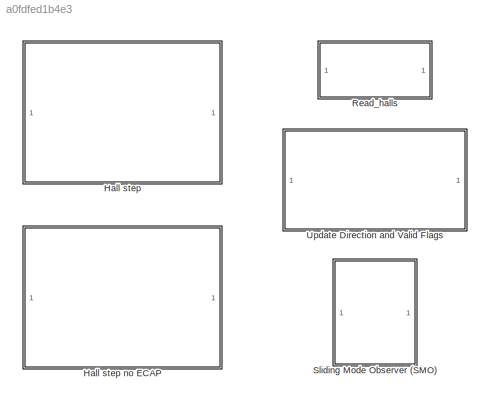
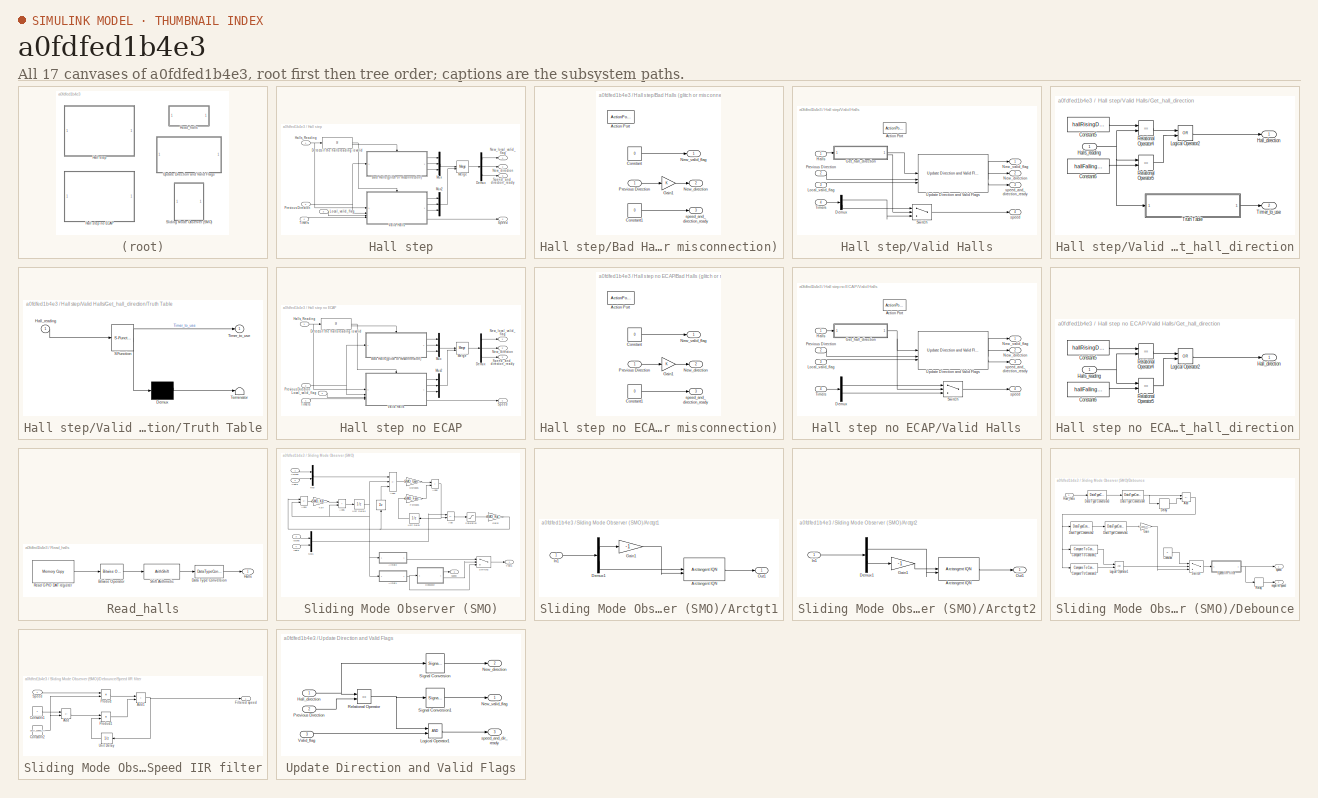
[diagram: thumbnail index - all 17 canvases of the model, root first then tree order]
MODEL slx_a0fdfed1b4e3
KIND library
CONFIG AbsTol = auto
CONFIG EnableMultiTasking = off
CONFIG FixedStep = auto
CONFIG MaxStep = auto
CONFIG MinStep = auto
CONFIG RelTol = 1e-3
CONFIG SampleTimeConstraint = Unconstrained
CONFIG SolverName = ode45
CONFIG StartTime = 0.0
CONFIG StopTime = 10.0
BLOCK [SubSystem] Hall step
  RTWSystemCode = Reusable function
  TreatAsAtomicUnit = on
BLOCK [SubSystem] Hall step no ECAP
  RTWSystemCode = Reusable function
  TreatAsAtomicUnit = on
BLOCK [SubSystem] Hall step no ECAP/Bad Halls (glitch or misconnection)
  TreatAsAtomicUnit = on
BLOCK [ActionPort] Hall step no ECAP/Bad Halls (glitch or misconnection)/Action Port
BLOCK [Constant] Hall step no ECAP/Bad Halls (glitch or misconnection)/Constant
  OutDataTypeStr = uint16
  Value = 0
BLOCK [Constant] Hall step no ECAP/Bad Halls (glitch or misconnection)/Constant1
  OutDataTypeStr = uint16
  Value = 0
BLOCK [Gain] Hall step no ECAP/Bad Halls (glitch or misconnection)/Gain1
  OutDataTypeStr = Inherit: Same as input
  ParamDataTypeStr = Inherit: Same as input
BLOCK [Outport] Hall step no ECAP/Bad Halls (glitch or misconnection)/New_direction
  Port = 2
BLOCK [Outport] Hall step no ECAP/Bad Halls (glitch or misconnection)/New_valid_flag
BLOCK [Inport] Hall step no ECAP/Bad Halls (glitch or misconnection)/Previous Direction
BLOCK [Outport] Hall step no ECAP/Bad Halls (glitch or misconnection)/speed_and_direction_ready
  Port = 3
BLOCK [Demux] Hall step no ECAP/Demux
  Outputs = 3
BLOCK [If] Hall step no ECAP/Detects if the halls reading is valid
  IfExpression = (u1 == hallRisingDir0)|(u1 == hallRisingDir1)|(u1 == hallFallingDir0)|(u1 == hallFallingDir1)
BLOCK [Inport] Hall step no ECAP/Halls_Reading
BLOCK [Inport] Hall step no ECAP/Local_valid_flag
  Port = 3
BLOCK [Merge] Hall step no ECAP/Merge
BLOCK [Mux] Hall step no ECAP/Mux
  DisplayOption = bar
  Inputs = 3
BLOCK [Mux] Hall step no ECAP/Mux2
  DisplayOption = bar
  Inputs = 3
BLOCK [Outport] Hall step no ECAP/New_direction
  Port = 2
BLOCK [Outport] Hall step no ECAP/New_local_valid_flag
BLOCK [Inport] Hall step no ECAP/Previous Direction
  Port = 2
BLOCK [Outport] Hall step no ECAP/Speed
  Port = 4
BLOCK [Outport] Hall step no ECAP/Speed_and_direction_ready
  Port = 3
BLOCK [Inport] Hall step no ECAP/Timers
  Port = 4
BLOCK [SubSystem] Hall step no ECAP/Valid Halls
  TreatAsAtomicUnit = on
BLOCK [ActionPort] Hall step no ECAP/Valid Halls/Action Port
BLOCK [Demux] Hall step no ECAP/Valid Halls/Demux
  Outputs = 2
BLOCK [SubSystem] Hall step no ECAP/Valid Halls/Get_hall_direction
BLOCK [Constant] Hall step no ECAP/Valid Halls/Get_hall_direction/Constant5
  OutDataTypeStr = uint16
  Value = hallRisingDir1
BLOCK [Constant] Hall step no ECAP/Valid Halls/Get_hall_direction/Constant6
  OutDataTypeStr = uint16
  Value = hallFallingDir1
BLOCK [Outport] Hall step no ECAP/Valid Halls/Get_hall_direction/Hall_direction
BLOCK [Inport] Hall step no ECAP/Valid Halls/Get_hall_direction/Halls_reading
BLOCK [Logic] Hall step no ECAP/Valid Halls/Get_hall_direction/Logical Operator2
  AllPortsSameDT = off
  Operator = OR
  OutDataTypeStr = uint(16)
BLOCK [RelationalOperator] Hall step no ECAP/Valid Halls/Get_hall_direction/Relational Operator4
  InputSameDT = off
  Operator = ==
  OutDataTypeStr = uint(16)
BLOCK [RelationalOperator] Hall step no ECAP/Valid Halls/Get_hall_direction/Relational Operator5
  InputSameDT = off
  Operator = ==
  OutDataTypeStr = uint(16)
BLOCK [Inport] Hall step no ECAP/Valid Halls/Halls
BLOCK [Inport] Hall step no ECAP/Valid Halls/Local_valid_flag
  Port = 3
BLOCK [Outport] Hall step no ECAP/Valid Halls/New_direction
  Port = 2
BLOCK [Outport] Hall step no ECAP/Valid Halls/New_valid_flag
BLOCK [Inport] Hall step no ECAP/Valid Halls/Previous Direction
  Port = 2
BLOCK [Switch] Hall step no ECAP/Valid Halls/Switch
  Criteria = u2 ~= 0
  InputSameDT = off
  SaturateOnIntegerOverflow = off
BLOCK [Inport] Hall step no ECAP/Valid Halls/Timers
  Port = 4
BLOCK [Reference] Hall step no ECAP/Valid Halls/Update Direction and Valid Flags  REF=$bdroot/Update Direction and Valid Flags
  SourceBlock = $bdroot/Update Direction and Valid Flags
  SourceType = SubSystem
BLOCK [Outport] Hall step no ECAP/Valid Halls/speed
  Port = 4
BLOCK [Outport] Hall step no ECAP/Valid Halls/speed_and_direction_ready
  Port = 3
BLOCK [SubSystem] Hall step/Bad Halls (glitch or misconnection)
  TreatAsAtomicUnit = on
BLOCK [ActionPort] Hall step/Bad Halls (glitch or misconnection)/Action Port
BLOCK [Constant] Hall step/Bad Halls (glitch or misconnection)/Constant
  OutDataTypeStr = uint16
  Value = 0
BLOCK [Constant] Hall step/Bad Halls (glitch or misconnection)/Constant1
  OutDataTypeStr = uint16
  Value = 0
BLOCK [Gain] Hall step/Bad Halls (glitch or misconnection)/Gain1
  OutDataTypeStr = Inherit: Same as input
  ParamDataTypeStr = Inherit: Same as input
BLOCK [Outport] Hall step/Bad Halls (glitch or misconnection)/New_direction
  Port = 2
BLOCK [Outport] Hall step/Bad Halls (glitch or misconnection)/New_valid_flag
BLOCK [Inport] Hall step/Bad Halls (glitch or misconnection)/Previous Direction
BLOCK [Outport] Hall step/Bad Halls (glitch or misconnection)/speed_and_direction_ready
  Port = 3
BLOCK [Demux] Hall step/Demux
  Outputs = 3
BLOCK [If] Hall step/Detects if the halls reading is valid
  IfExpression = (u1 == hallRisingDir0)|(u1 == hallRisingDir1)|(u1 == hallFallingDir0)|(u1 == hallFallingDir1)
BLOCK [Inport] Hall step/Halls_Reading
BLOCK [Inport] Hall step/Local_valid_flag
  Port = 3
BLOCK [Merge] Hall step/Merge
BLOCK [Mux] Hall step/Mux
  DisplayOption = bar
  Inputs = 3
BLOCK [Mux] Hall step/Mux2
  DisplayOption = bar
  Inputs = 3
BLOCK [Outport] Hall step/New_direction
  Port = 2
BLOCK [Outport] Hall step/New_local_valid_flag
BLOCK [Inport] Hall step/Previous Direction
  Port = 2
BLOCK [Outport] Hall step/Speed
  Port = 4
BLOCK [Outport] Hall step/Speed_and_direction_ready
  Port = 3
BLOCK [Inport] Hall step/Timers
  Port = 4
BLOCK [SubSystem] Hall step/Valid Halls
  TreatAsAtomicUnit = on
BLOCK [ActionPort] Hall step/Valid Halls/Action Port
BLOCK [Demux] Hall step/Valid Halls/Demux
  Outputs = 2
BLOCK [SubSystem] Hall step/Valid Halls/Get_hall_direction
BLOCK [Constant] Hall step/Valid Halls/Get_hall_direction/Constant5
  OutDataTypeStr = uint16
  Value = hallRisingDir1
BLOCK [Constant] Hall step/Valid Halls/Get_hall_direction/Constant6
  OutDataTypeStr = uint16
  Value = hallFallingDir1
BLOCK [Outport] Hall step/Valid Halls/Get_hall_direction/Hall_direction
BLOCK [Inport] Hall step/Valid Halls/Get_hall_direction/Halls_reading
BLOCK [Logic] Hall step/Valid Halls/Get_hall_direction/Logical Operator2
  AllPortsSameDT = off
  Operator = OR
  OutDataTypeStr = uint(16)
BLOCK [RelationalOperator] Hall step/Valid Halls/Get_hall_direction/Relational Operator4
  InputSameDT = off
  Operator = ==
  OutDataTypeStr = uint(16)
BLOCK [RelationalOperator] Hall step/Valid Halls/Get_hall_direction/Relational Operator5
  InputSameDT = off
  Operator = ==
  OutDataTypeStr = uint(16)
BLOCK [Outport] Hall step/Valid Halls/Get_hall_direction/Timer_to_use
  Port = 2
BLOCK [SubSystem] Hall step/Valid Halls/Get_hall_direction/Truth Table
  ErrorFcn = Stateflow.Translate.translate
  PermitHierarchicalResolution = ExplicitOnly
  SFBlockType = Truth Table
  TreatAsAtomicUnit = on
BLOCK [Demux] Hall step/Valid Halls/Get_hall_direction/Truth Table/ Demux 
  Outputs = 1
BLOCK [S-Function] Hall step/Valid Halls/Get_hall_direction/Truth Table/ SFunction 
  EnableBusSupport = off
  FunctionName = sf_sfun
  Parameters = hallFallingDir0,hallFallingDir1,hallRisingDir0,hallRisingDir1
  PortCounts = [1 2]
  SFcnIsStateOwnerBlock = off
  SFunctionDeploymentMode = off
  Tag = Stateflow S-Function 2
BLOCK [Terminator] Hall step/Valid Halls/Get_hall_direction/Truth Table/ Terminator 
BLOCK [Inport] Hall step/Valid Halls/Get_hall_direction/Truth Table/Hall_reading
BLOCK [Outport] Hall step/Valid Halls/Get_hall_direction/Truth Table/Timer_to_use
BLOCK [Inport] Hall step/Valid Halls/Halls
BLOCK [Inport] Hall step/Valid Halls/Local_valid_flag
  Port = 3
BLOCK [Outport] Hall step/Valid Halls/New_direction
  Port = 2
BLOCK [Outport] Hall step/Valid Halls/New_valid_flag
BLOCK [Inport] Hall step/Valid Halls/Previous Direction
  Port = 2
BLOCK [Switch] Hall step/Valid Halls/Switch
  Criteria = u2 ~= 0
  InputSameDT = off
  SaturateOnIntegerOverflow = off
BLOCK [Inport] Hall step/Valid Halls/Timers
  Port = 4
BLOCK [Reference] Hall step/Valid Halls/Update Direction and Valid Flags  REF=$bdroot/Update Direction and Valid Flags
  SourceBlock = $bdroot/Update Direction and Valid Flags
  SourceType = SubSystem
BLOCK [Outport] Hall step/Valid Halls/speed
  Port = 4
BLOCK [Outport] Hall step/Valid Halls/speed_and_direction_ready
  Port = 3
BLOCK [SubSystem] Read_halls
BLOCK [Reference] Read_halls/Bitwise Operator  REF=simulink/Logic and Bit
Operations/Bitwise
Operator
  SourceBlock = simulink/Logic and Bit\nOperations/Bitwise\nOperator
  SourceType = Bitwise Operator
BLOCK [DataTypeConversion] Read_halls/Data Type Conversion
  ConvertRealWorld = Stored Integer (SI)
  OutDataTypeStr = uint16
  RndMeth = Floor
  SaturateOnIntegerOverflow = off
BLOCK [Outport] Read_halls/Halls
BLOCK [Reference] Read_halls/Read GPIO DAT register  REF=idelinklib_common/Memory Copy
  SourceBlock = idelinklib_common/Memory Copy
  SourceType = Memory Copy
BLOCK [ArithShift] Read_halls/Shift Arithmetic
  BitShiftNumber = 24
  InputPortMap = u0
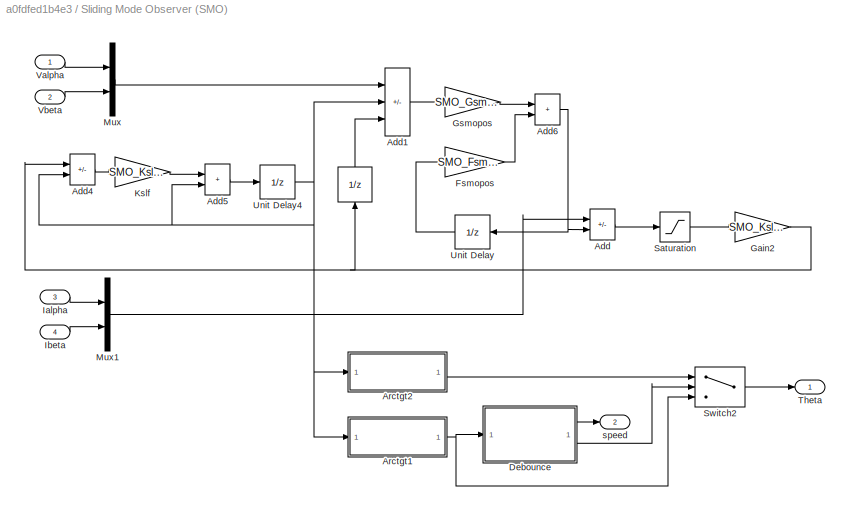
BLOCK [SubSystem] Sliding Mode Observer (SMO)
  MinAlgLoopOccurrences = on
  RTWSystemCode = Reusable function
  TreatAsAtomicUnit = on
BLOCK [UnitDelay] Sliding Mode Observer (SMO)/ 
  HasFrameUpgradeWarning = on
  NameLocation = left
  SampleTime = -1
BLOCK [Sum] Sliding Mode Observer (SMO)/Add
  IconShape = rectangular
  Inputs = -+
  OutDataTypeStr = Inherit: Same as first input
BLOCK [Sum] Sliding Mode Observer (SMO)/Add1
  AccumDataTypeStr = Inherit: Same as first input
  IconShape = rectangular
  Inputs = +--
  OutDataTypeStr = Inherit: Inherit via back propagation
BLOCK [Sum] Sliding Mode Observer (SMO)/Add4
  IconShape = rectangular
  Inputs = +-
  OutDataTypeStr = Inherit: Same as first input
BLOCK [Sum] Sliding Mode Observer (SMO)/Add5
  IconShape = rectangular
  OutDataTypeStr = Inherit: Same as first input
BLOCK [Sum] Sliding Mode Observer (SMO)/Add6
  IconShape = rectangular
  OutDataTypeStr = Inherit: Same as first input
BLOCK [SubSystem] Sliding Mode Observer (SMO)/Arctgt1
BLOCK [Reference] Sliding Mode Observer (SMO)/Arctgt1/Arctangent IQN  REF=tiiqmathlib/Arctangent IQN
  SourceBlock = tiiqmathlib/Arctangent IQN
  SourceType = Arctangent IQN
BLOCK [Demux] Sliding Mode Observer (SMO)/Arctgt1/Demux1
  Outputs = 2
BLOCK [Gain] Sliding Mode Observer (SMO)/Arctgt1/Gain1
  Gain = -1
  OutDataTypeStr = Inherit: Same as input
  ParamDataTypeStr = Inherit: Same as input
BLOCK [Inport] Sliding Mode Observer (SMO)/Arctgt1/In1
BLOCK [Outport] Sliding Mode Observer (SMO)/Arctgt1/Out1
BLOCK [SubSystem] Sliding Mode Observer (SMO)/Arctgt2
BLOCK [Reference] Sliding Mode Observer (SMO)/Arctgt2/Arctangent IQN  REF=tiiqmathlib/Arctangent IQN
  SourceBlock = tiiqmathlib/Arctangent IQN
  SourceType = Arctangent IQN
BLOCK [Demux] Sliding Mode Observer (SMO)/Arctgt2/Demux1
  Outputs = 2
BLOCK [Gain] Sliding Mode Observer (SMO)/Arctgt2/Gain1
  Gain = -1
  OutDataTypeStr = Inherit: Same as input
  ParamDataTypeStr = Inherit: Same as input
BLOCK [Inport] Sliding Mode Observer (SMO)/Arctgt2/In1
BLOCK [Outport] Sliding Mode Observer (SMO)/Arctgt2/Out1
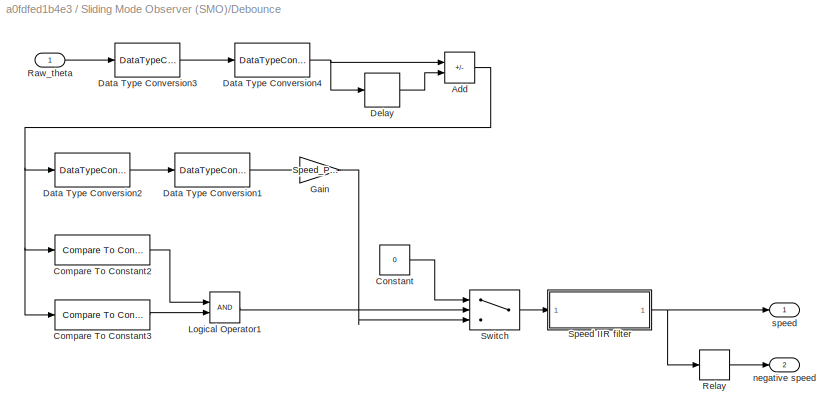
BLOCK [SubSystem] Sliding Mode Observer (SMO)/Debounce
BLOCK [Sum] Sliding Mode Observer (SMO)/Debounce/Add
  IconShape = rectangular
  Inputs = +-
  OutDataTypeStr = uint16
BLOCK [Reference] Sliding Mode Observer (SMO)/Debounce/Compare To Constant2  REF=simulink/Logic and Bit
Operations/Compare
To Constant
  SourceBlock = simulink/Logic and Bit\nOperations/Compare\nTo Constant
  SourceType = Compare To Constant
BLOCK [Reference] Sliding Mode Observer (SMO)/Debounce/Compare To Constant3  REF=simulink/Logic and Bit
Operations/Compare
To Constant
  SourceBlock = simulink/Logic and Bit\nOperations/Compare\nTo Constant
  SourceType = Compare To Constant
BLOCK [Constant] Sliding Mode Observer (SMO)/Debounce/Constant
  OutDataTypeStr = fixdt(1,32,17)
  Value = 0
BLOCK [DataTypeConversion] Sliding Mode Observer (SMO)/Debounce/Data Type Conversion1
  ConvertRealWorld = Stored Integer (SI)
  OutDataTypeStr = fixdt(1,32,15)
  RndMeth = Floor
  SaturateOnIntegerOverflow = off
BLOCK [DataTypeConversion] Sliding Mode Observer (SMO)/Debounce/Data Type Conversion2
  ConvertRealWorld = Stored Integer (SI)
  OutDataTypeStr = int16
  RndMeth = Floor
  SaturateOnIntegerOverflow = off
BLOCK [DataTypeConversion] Sliding Mode Observer (SMO)/Debounce/Data Type Conversion3
  OutDataTypeStr = fixdt(1,32,16)
  RndMeth = Floor
  SaturateOnIntegerOverflow = off
BLOCK [DataTypeConversion] Sliding Mode Observer (SMO)/Debounce/Data Type Conversion4
  ConvertRealWorld = Stored Integer (SI)
  OutDataTypeStr = uint16
  RndMeth = Floor
  SaturateOnIntegerOverflow = off
BLOCK [Delay] Sliding Mode Observer (SMO)/Debounce/Delay
  DelayLength = SMO_speed_loop_delay
  InputPortMap = u0
BLOCK [Gain] Sliding Mode Observer (SMO)/Debounce/Gain
  Gain = Speed_PU_scaler
  OutDataTypeStr = fixdt(1,32,17)
  ParamDataTypeStr = fixdt(1,32,17)
BLOCK [Logic] Sliding Mode Observer (SMO)/Debounce/Logical Operator1
  AllPortsSameDT = off
  OutDataTypeStr = boolean
BLOCK [Inport] Sliding Mode Observer (SMO)/Debounce/Raw_theta
BLOCK [Relay] Sliding Mode Observer (SMO)/Debounce/Relay
  OffOutputValue = 1
  OffSwitchValue = -0.05
  OnOutputValue = 0
  OnSwitchValue = 0.05
BLOCK [SubSystem] Sliding Mode Observer (SMO)/Debounce/Speed IIR filter
BLOCK [Sum] Sliding Mode Observer (SMO)/Debounce/Speed IIR filter/Add
  IconShape = rectangular
  Inputs = +-
BLOCK [Sum] Sliding Mode Observer (SMO)/Debounce/Speed IIR filter/Add1
  IconShape = rectangular
BLOCK [Constant] Sliding Mode Observer (SMO)/Debounce/Speed IIR filter/Constant1
  OutDataTypeStr = fixdt(1,32,17)
BLOCK [Constant] Sliding Mode Observer (SMO)/Debounce/Speed IIR filter/Constant2
  OutDataTypeStr = fixdt(1,32,17)
  Value = SMO_speed_IIR_gain
BLOCK [Outport] Sliding Mode Observer (SMO)/Debounce/Speed IIR filter/Filtered speed
BLOCK [Product] Sliding Mode Observer (SMO)/Debounce/Speed IIR filter/Product
  OutDataTypeStr = Inherit: Same as first input
BLOCK [Product] Sliding Mode Observer (SMO)/Debounce/Speed IIR filter/Product1
  OutDataTypeStr = Inherit: Same as first input
BLOCK [Inport] Sliding Mode Observer (SMO)/Debounce/Speed IIR filter/Speed
BLOCK [UnitDelay] Sliding Mode Observer (SMO)/Debounce/Speed IIR filter/Unit Delay
  HasFrameUpgradeWarning = on
  SampleTime = -1
BLOCK [Switch] Sliding Mode Observer (SMO)/Debounce/Switch
  Criteria = u2 ~= 0
  InputSameDT = off
  SaturateOnIntegerOverflow = off
BLOCK [Outport] Sliding Mode Observer (SMO)/Debounce/negative speed
  Port = 2
BLOCK [Outport] Sliding Mode Observer (SMO)/Debounce/speed
BLOCK [Gain] Sliding Mode Observer (SMO)/Fsmopos
  Gain = SMO_Fsmopos_gain
  OutDataTypeStr = Inherit: Same as input
  ParamDataTypeStr = Inherit: Same as input
BLOCK [Gain] Sliding Mode Observer (SMO)/Gain2
  Gain = SMO_Kslide_gain*2
  OutDataTypeStr = Inherit: Same as input
  ParamDataTypeStr = Inherit: Same as input
BLOCK [Gain] Sliding Mode Observer (SMO)/Gsmopos
  Gain = SMO_Gsmopos_gain
  OutDataTypeStr = Inherit: Same as input
  ParamDataTypeStr = Inherit: Same as input
BLOCK [Inport] Sliding Mode Observer (SMO)/Ialpha
  Port = 3
BLOCK [Inport] Sliding Mode Observer (SMO)/Ibeta
  Port = 4
BLOCK [Gain] Sliding Mode Observer (SMO)/Kslf
  Gain = SMO_Kslf_gain
  OutDataTypeStr = Inherit: Same as input
  ParamDataTypeStr = Inherit: Same as input
BLOCK [Mux] Sliding Mode Observer (SMO)/Mux
  DisplayOption = bar
  Inputs = 2
BLOCK [Mux] Sliding Mode Observer (SMO)/Mux1
  DisplayOption = bar
  Inputs = 2
BLOCK [Saturate] Sliding Mode Observer (SMO)/Saturation
  LowerLimit = -SMO_E0
  UpperLimit = SMO_E0
BLOCK [Switch] Sliding Mode Observer (SMO)/Switch2
  Criteria = u2 ~= 0
  InputSameDT = off
  SaturateOnIntegerOverflow = off
BLOCK [Outport] Sliding Mode Observer (SMO)/Theta
BLOCK [UnitDelay] Sliding Mode Observer (SMO)/Unit Delay
  HasFrameUpgradeWarning = on
  SampleTime = -1
BLOCK [UnitDelay] Sliding Mode Observer (SMO)/Unit Delay4
  HasFrameUpgradeWarning = on
  SampleTime = -1
BLOCK [Inport] Sliding Mode Observer (SMO)/Valpha
BLOCK [Inport] Sliding Mode Observer (SMO)/Vbeta
  Port = 2
BLOCK [Outport] Sliding Mode Observer (SMO)/speed
  Port = 2
BLOCK [SubSystem] Update Direction and Valid Flags
BLOCK [Inport] Update Direction and Valid Flags/Hall_direction
BLOCK [Logic] Update Direction and Valid Flags/Logical Operator1
  AllPortsSameDT = off
  OutDataTypeStr = uint(16)
BLOCK [Outport] Update Direction and Valid Flags/New_direction
  Port = 2
BLOCK [Outport] Update Direction and Valid Flags/New_valid_flag
BLOCK [Inport] Update Direction and Valid Flags/Previous Direction
  Port = 2
BLOCK [RelationalOperator] Update Direction and Valid Flags/Relational Operator
  InputSameDT = off
  Operator = ==
  OutDataTypeStr = uint(16)
BLOCK [SignalConversion] Update Direction and Valid Flags/Signal Conversion
  OverrideOpt = on
BLOCK [SignalConversion] Update Direction and Valid Flags/Signal Conversion1
  OverrideOpt = on
BLOCK [Inport] Update Direction and Valid Flags/Valid_flag
  Port = 3
BLOCK [Outport] Update Direction and Valid Flags/speed_and_dir_ready
  Port = 3
LINE Hall step no ECAP/Bad Halls (glitch or misconnection)/Constant1:1 -> Hall step no ECAP/Bad Halls (glitch or misconnection)/speed_and_direction_ready:1
LINE Hall step no ECAP/Bad Halls (glitch or misconnection)/Constant:1 -> Hall step no ECAP/Bad Halls (glitch or misconnection)/New_valid_flag:1
LINE Hall step no ECAP/Bad Halls (glitch or misconnection)/Gain1:1 -> Hall step no ECAP/Bad Halls (glitch or misconnection)/New_direction:1
LINE Hall step no ECAP/Bad Halls (glitch or misconnection)/Previous Direction:1 -> Hall step no ECAP/Bad Halls (glitch or misconnection)/Gain1:1
LINE Hall step no ECAP/Bad Halls (glitch or misconnection):1 -> Hall step no ECAP/Mux:1
LINE Hall step no ECAP/Bad Halls (glitch or misconnection):2 -> Hall step no ECAP/Mux:2
LINE Hall step no ECAP/Bad Halls (glitch or misconnection):3 -> Hall step no ECAP/Mux:3
LINE Hall step no ECAP/Demux:1 -> Hall step no ECAP/New_local_valid_flag:1
LINE Hall step no ECAP/Demux:2 -> Hall step no ECAP/New_direction:1
LINE Hall step no ECAP/Demux:3 -> Hall step no ECAP/Speed_and_direction_ready:1
LINE Hall step no ECAP/Detects if the halls reading is valid:1 -> Hall step no ECAP/Valid Halls:ifaction
LINE Hall step no ECAP/Detects if the halls reading is valid:2 -> Hall step no ECAP/Bad Halls (glitch or misconnection):ifaction
NET Hall step no ECAP/Halls_Reading:1 -> Hall step no ECAP/Detects if the halls reading is valid:1, Hall step no ECAP/Valid Halls:1
LINE Hall step no ECAP/Local_valid_flag:1 -> Hall step no ECAP/Valid Halls:3
LINE Hall step no ECAP/Merge:1 -> Hall step no ECAP/Demux:1
LINE Hall step no ECAP/Mux2:1 -> Hall step no ECAP/Merge:2
LINE Hall step no ECAP/Mux:1 -> Hall step no ECAP/Merge:1
NET Hall step no ECAP/Previous Direction:1 -> Hall step no ECAP/Bad Halls (glitch or misconnection):1, Hall step no ECAP/Valid Halls:2
LINE Hall step no ECAP/Timers:1 -> Hall step no ECAP/Valid Halls:4
LINE Hall step no ECAP/Valid Halls/Demux:1 -> Hall step no ECAP/Valid Halls/Switch:1
LINE Hall step no ECAP/Valid Halls/Demux:2 -> Hall step no ECAP/Valid Halls/Switch:3
LINE Hall step no ECAP/Valid Halls/Get_hall_direction/Constant5:1 -> Hall step no ECAP/Valid Halls/Get_hall_direction/Relational Operator4:1
LINE Hall step no ECAP/Valid Halls/Get_hall_direction/Constant6:1 -> Hall step no ECAP/Valid Halls/Get_hall_direction/Relational Operator5:2
NET Hall step no ECAP/Valid Halls/Get_hall_direction/Halls_reading:1 -> Hall step no ECAP/Valid Halls/Get_hall_direction/Relational Operator4:2, Hall step no ECAP/Valid Halls/Get_hall_direction/Relational Operator5:1
LINE Hall step no ECAP/Valid Halls/Get_hall_direction/Logical Operator2:1 -> Hall step no ECAP/Valid Halls/Get_hall_direction/Hall_direction:1
LINE Hall step no ECAP/Valid Halls/Get_hall_direction/Relational Operator4:1 -> Hall step no ECAP/Valid Halls/Get_hall_direction/Logical Operator2:1
LINE Hall step no ECAP/Valid Halls/Get_hall_direction/Relational Operator5:1 -> Hall step no ECAP/Valid Halls/Get_hall_direction/Logical Operator2:2
NET Hall step no ECAP/Valid Halls/Get_hall_direction:1 -> Hall step no ECAP/Valid Halls/Switch:2, Hall step no ECAP/Valid Halls/Update Direction and Valid Flags:1
LINE Hall step no ECAP/Valid Halls/Halls:1 -> Hall step no ECAP/Valid Halls/Get_hall_direction:1
LINE Hall step no ECAP/Valid Halls/Local_valid_flag:1 -> Hall step no ECAP/Valid Halls/Update Direction and Valid Flags:3
LINE Hall step no ECAP/Valid Halls/Previous Direction:1 -> Hall step no ECAP/Valid Halls/Update Direction and Valid Flags:2
LINE Hall step no ECAP/Valid Halls/Switch:1 -> Hall step no ECAP/Valid Halls/speed:1
LINE Hall step no ECAP/Valid Halls/Timers:1 -> Hall step no ECAP/Valid Halls/Demux:1
LINE Hall step no ECAP/Valid Halls/Update Direction and Valid Flags:1 -> Hall step no ECAP/Valid Halls/New_valid_flag:1
LINE Hall step no ECAP/Valid Halls/Update Direction and Valid Flags:2 -> Hall step no ECAP/Valid Halls/New_direction:1
LINE Hall step no ECAP/Valid Halls/Update Direction and Valid Flags:3 -> Hall step no ECAP/Valid Halls/speed_and_direction_ready:1
LINE Hall step no ECAP/Valid Halls:1 -> Hall step no ECAP/Mux2:1
LINE Hall step no ECAP/Valid Halls:2 -> Hall step no ECAP/Mux2:2
LINE Hall step no ECAP/Valid Halls:3 -> Hall step no ECAP/Mux2:3
LINE Hall step no ECAP/Valid Halls:4 -> Hall step no ECAP/Speed:1
LINE Hall step/Bad Halls (glitch or misconnection)/Constant1:1 -> Hall step/Bad Halls (glitch or misconnection)/speed_and_direction_ready:1
LINE Hall step/Bad Halls (glitch or misconnection)/Constant:1 -> Hall step/Bad Halls (glitch or misconnection)/New_valid_flag:1
LINE Hall step/Bad Halls (glitch or misconnection)/Gain1:1 -> Hall step/Bad Halls (glitch or misconnection)/New_direction:1
LINE Hall step/Bad Halls (glitch or misconnection)/Previous Direction:1 -> Hall step/Bad Halls (glitch or misconnection)/Gain1:1
LINE Hall step/Bad Halls (glitch or misconnection):1 -> Hall step/Mux:1
LINE Hall step/Bad Halls (glitch or misconnection):2 -> Hall step/Mux:2
LINE Hall step/Bad Halls (glitch or misconnection):3 -> Hall step/Mux:3
LINE Hall step/Demux:1 -> Hall step/New_local_valid_flag:1
LINE Hall step/Demux:2 -> Hall step/New_direction:1
LINE Hall step/Demux:3 -> Hall step/Speed_and_direction_ready:1
LINE Hall step/Detects if the halls reading is valid:1 -> Hall step/Valid Halls:ifaction
LINE Hall step/Detects if the halls reading is valid:2 -> Hall step/Bad Halls (glitch or misconnection):ifaction
NET Hall step/Halls_Reading:1 -> Hall step/Detects if the halls reading is valid:1, Hall step/Valid Halls:1
LINE Hall step/Local_valid_flag:1 -> Hall step/Valid Halls:3
LINE Hall step/Merge:1 -> Hall step/Demux:1
LINE Hall step/Mux2:1 -> Hall step/Merge:2
LINE Hall step/Mux:1 -> Hall step/Merge:1
NET Hall step/Previous Direction:1 -> Hall step/Bad Halls (glitch or misconnection):1, Hall step/Valid Halls:2
LINE Hall step/Timers:1 -> Hall step/Valid Halls:4
LINE Hall step/Valid Halls/Demux:1 -> Hall step/Valid Halls/Switch:3
LINE Hall step/Valid Halls/Demux:2 -> Hall step/Valid Halls/Switch:1
LINE Hall step/Valid Halls/Get_hall_direction/Constant5:1 -> Hall step/Valid Halls/Get_hall_direction/Relational Operator4:1
LINE Hall step/Valid Halls/Get_hall_direction/Constant6:1 -> Hall step/Valid Halls/Get_hall_direction/Relational Operator5:2
NET Hall step/Valid Halls/Get_hall_direction/Halls_reading:1 -> Hall step/Valid Halls/Get_hall_direction/Relational Operator4:2, Hall step/Valid Halls/Get_hall_direction/Relational Operator5:1, Hall step/Valid Halls/Get_hall_direction/Truth Table:1
LINE Hall step/Valid Halls/Get_hall_direction/Logical Operator2:1 -> Hall step/Valid Halls/Get_hall_direction/Hall_direction:1
LINE Hall step/Valid Halls/Get_hall_direction/Relational Operator4:1 -> Hall step/Valid Halls/Get_hall_direction/Logical Operator2:1
LINE Hall step/Valid Halls/Get_hall_direction/Relational Operator5:1 -> Hall step/Valid Halls/Get_hall_direction/Logical Operator2:2
LINE Hall step/Valid Halls/Get_hall_direction/Truth Table:1 -> Hall step/Valid Halls/Get_hall_direction/Timer_to_use:1
LINE Hall step/Valid Halls/Get_hall_direction:1 -> Hall step/Valid Halls/Update Direction and Valid Flags:1
LINE Hall step/Valid Halls/Get_hall_direction:2 -> Hall step/Valid Halls/Switch:2
LINE Hall step/Valid Halls/Halls:1 -> Hall step/Valid Halls/Get_hall_direction:1
LINE Hall step/Valid Halls/Local_valid_flag:1 -> Hall step/Valid Halls/Update Direction and Valid Flags:3
LINE Hall step/Valid Halls/Previous Direction:1 -> Hall step/Valid Halls/Update Direction and Valid Flags:2
LINE Hall step/Valid Halls/Switch:1 -> Hall step/Valid Halls/speed:1
LINE Hall step/Valid Halls/Timers:1 -> Hall step/Valid Halls/Demux:1
LINE Hall step/Valid Halls/Update Direction and Valid Flags:1 -> Hall step/Valid Halls/New_valid_flag:1
LINE Hall step/Valid Halls/Update Direction and Valid Flags:2 -> Hall step/Valid Halls/New_direction:1
LINE Hall step/Valid Halls/Update Direction and Valid Flags:3 -> Hall step/Valid Halls/speed_and_direction_ready:1
LINE Hall step/Valid Halls:1 -> Hall step/Mux2:1
LINE Hall step/Valid Halls:2 -> Hall step/Mux2:2
LINE Hall step/Valid Halls:3 -> Hall step/Mux2:3
LINE Hall step/Valid Halls:4 -> Hall step/Speed:1
LINE Read_halls/Bitwise Operator:1 -> Read_halls/Shift Arithmetic:1
LINE Read_halls/Data Type Conversion:1 -> Read_halls/Halls:1
LINE Read_halls/Read GPIO DAT register:1 -> Read_halls/Bitwise Operator:1
LINE Read_halls/Shift Arithmetic:1 -> Read_halls/Data Type Conversion:1
LINE Sliding Mode Observer (SMO)/ :1 -> Sliding Mode Observer (SMO)/Add1:3
LINE Sliding Mode Observer (SMO)/Add1:1 -> Sliding Mode Observer (SMO)/Gsmopos:1
LINE Sliding Mode Observer (SMO)/Add4:1 -> Sliding Mode Observer (SMO)/Kslf:1
LINE Sliding Mode Observer (SMO)/Add5:1 -> Sliding Mode Observer (SMO)/Unit Delay4:1
NET Sliding Mode Observer (SMO)/Add6:1 -> Sliding Mode Observer (SMO)/Add:2, Sliding Mode Observer (SMO)/Unit Delay:1
LINE Sliding Mode Observer (SMO)/Add:1 -> Sliding Mode Observer (SMO)/Saturation:1
LINE Sliding Mode Observer (SMO)/Arctgt1/Arctangent IQN:1 -> Sliding Mode Observer (SMO)/Arctgt1/Out1:1
LINE Sliding Mode Observer (SMO)/Arctgt1/Demux1:1 -> Sliding Mode Observer (SMO)/Arctgt1/Gain1:1
LINE Sliding Mode Observer (SMO)/Arctgt1/Demux1:2 -> Sliding Mode Observer (SMO)/Arctgt1/Arctangent IQN:1
LINE Sliding Mode Observer (SMO)/Arctgt1/Gain1:1 -> Sliding Mode Observer (SMO)/Arctgt1/Arctangent IQN:2
LINE Sliding Mode Observer (SMO)/Arctgt1/In1:1 -> Sliding Mode Observer (SMO)/Arctgt1/Demux1:1
NET Sliding Mode Observer (SMO)/Arctgt1:1 -> Sliding Mode Observer (SMO)/Debounce:1, Sliding Mode Observer (SMO)/Switch2:3
LINE Sliding Mode Observer (SMO)/Arctgt2/Arctangent IQN:1 -> Sliding Mode Observer (SMO)/Arctgt2/Out1:1
LINE Sliding Mode Observer (SMO)/Arctgt2/Demux1:1 -> Sliding Mode Observer (SMO)/Arctgt2/Arctangent IQN:2
LINE Sliding Mode Observer (SMO)/Arctgt2/Demux1:2 -> Sliding Mode Observer (SMO)/Arctgt2/Gain1:1
LINE Sliding Mode Observer (SMO)/Arctgt2/Gain1:1 -> Sliding Mode Observer (SMO)/Arctgt2/Arctangent IQN:1
LINE Sliding Mode Observer (SMO)/Arctgt2/In1:1 -> Sliding Mode Observer (SMO)/Arctgt2/Demux1:1
LINE Sliding Mode Observer (SMO)/Arctgt2:1 -> Sliding Mode Observer (SMO)/Switch2:1
NET Sliding Mode Observer (SMO)/Debounce/Add:1 -> Sliding Mode Observer (SMO)/Debounce/Compare To Constant2:1, Sliding Mode Observer (SMO)/Debounce/Compare To Constant3:1, Sliding Mode Observer (SMO)/Debounce/Data Type Conversion2:1
LINE Sliding Mode Observer (SMO)/Debounce/Compare To Constant2:1 -> Sliding Mode Observer (SMO)/Debounce/Logical Operator1:1
LINE Sliding Mode Observer (SMO)/Debounce/Compare To Constant3:1 -> Sliding Mode Observer (SMO)/Debounce/Logical Operator1:2
LINE Sliding Mode Observer (SMO)/Debounce/Constant:1 -> Sliding Mode Observer (SMO)/Debounce/Switch:1
LINE Sliding Mode Observer (SMO)/Debounce/Data Type Conversion1:1 -> Sliding Mode Observer (SMO)/Debounce/Gain:1
LINE Sliding Mode Observer (SMO)/Debounce/Data Type Conversion2:1 -> Sliding Mode Observer (SMO)/Debounce/Data Type Conversion1:1
LINE Sliding Mode Observer (SMO)/Debounce/Data Type Conversion3:1 -> Sliding Mode Observer (SMO)/Debounce/Data Type Conversion4:1
NET Sliding Mode Observer (SMO)/Debounce/Data Type Conversion4:1 -> Sliding Mode Observer (SMO)/Debounce/Add:1, Sliding Mode Observer (SMO)/Debounce/Delay:1
LINE Sliding Mode Observer (SMO)/Debounce/Delay:1 -> Sliding Mode Observer (SMO)/Debounce/Add:2
LINE Sliding Mode Observer (SMO)/Debounce/Gain:1 -> Sliding Mode Observer (SMO)/Debounce/Switch:3
LINE Sliding Mode Observer (SMO)/Debounce/Logical Operator1:1 -> Sliding Mode Observer (SMO)/Debounce/Switch:2
LINE Sliding Mode Observer (SMO)/Debounce/Raw_theta:1 -> Sliding Mode Observer (SMO)/Debounce/Data Type Conversion3:1
LINE Sliding Mode Observer (SMO)/Debounce/Relay:1 -> Sliding Mode Observer (SMO)/Debounce/negative speed:1
NET Sliding Mode Observer (SMO)/Debounce/Speed IIR filter/Add1:1 -> Sliding Mode Observer (SMO)/Debounce/Speed IIR filter/Filtered speed:1, Sliding Mode Observer (SMO)/Debounce/Speed IIR filter/Unit Delay:1
LINE Sliding Mode Observer (SMO)/Debounce/Speed IIR filter/Add:1 -> Sliding Mode Observer (SMO)/Debounce/Speed IIR filter/Product1:1
LINE Sliding Mode Observer (SMO)/Debounce/Speed IIR filter/Constant1:1 -> Sliding Mode Observer (SMO)/Debounce/Speed IIR filter/Add:1
NET Sliding Mode Observer (SMO)/Debounce/Speed IIR filter/Constant2:1 -> Sliding Mode Observer (SMO)/Debounce/Speed IIR filter/Add:2, Sliding Mode Observer (SMO)/Debounce/Speed IIR filter/Product:2
LINE Sliding Mode Observer (SMO)/Debounce/Speed IIR filter/Product1:1 -> Sliding Mode Observer (SMO)/Debounce/Speed IIR filter/Add1:2
LINE Sliding Mode Observer (SMO)/Debounce/Speed IIR filter/Product:1 -> Sliding Mode Observer (SMO)/Debounce/Speed IIR filter/Add1:1
LINE Sliding Mode Observer (SMO)/Debounce/Speed IIR filter/Speed:1 -> Sliding Mode Observer (SMO)/Debounce/Speed IIR filter/Product:1
LINE Sliding Mode Observer (SMO)/Debounce/Speed IIR filter/Unit Delay:1 -> Sliding Mode Observer (SMO)/Debounce/Speed IIR filter/Product1:2
NET Sliding Mode Observer (SMO)/Debounce/Speed IIR filter:1 -> Sliding Mode Observer (SMO)/Debounce/Relay:1, Sliding Mode Observer (SMO)/Debounce/speed:1
LINE Sliding Mode Observer (SMO)/Debounce/Switch:1 -> Sliding Mode Observer (SMO)/Debounce/Speed IIR filter:1
LINE Sliding Mode Observer (SMO)/Debounce:1 -> Sliding Mode Observer (SMO)/speed:1
LINE Sliding Mode Observer (SMO)/Debounce:2 -> Sliding Mode Observer (SMO)/Switch2:2
LINE Sliding Mode Observer (SMO)/Fsmopos:1 -> Sliding Mode Observer (SMO)/Add6:2
NET Sliding Mode Observer (SMO)/Gain2:1 -> Sliding Mode Observer (SMO)/ :1, Sliding Mode Observer (SMO)/Add4:1
LINE Sliding Mode Observer (SMO)/Gsmopos:1 -> Sliding Mode Observer (SMO)/Add6:1
LINE Sliding Mode Observer (SMO)/Ialpha:1 -> Sliding Mode Observer (SMO)/Mux1:1
LINE Sliding Mode Observer (SMO)/Ibeta:1 -> Sliding Mode Observer (SMO)/Mux1:2
LINE Sliding Mode Observer (SMO)/Kslf:1 -> Sliding Mode Observer (SMO)/Add5:1
LINE Sliding Mode Observer (SMO)/Mux1:1 -> Sliding Mode Observer (SMO)/Add:1
LINE Sliding Mode Observer (SMO)/Mux:1 -> Sliding Mode Observer (SMO)/Add1:1
LINE Sliding Mode Observer (SMO)/Saturation:1 -> Sliding Mode Observer (SMO)/Gain2:1
LINE Sliding Mode Observer (SMO)/Switch2:1 -> Sliding Mode Observer (SMO)/Theta:1
NET Sliding Mode Observer (SMO)/Unit Delay4:1 -> Sliding Mode Observer (SMO)/Add1:2, Sliding Mode Observer (SMO)/Add4:2, Sliding Mode Observer (SMO)/Add5:2, Sliding Mode Observer (SMO)/Arctgt1:1, Sliding Mode Observer (SMO)/Arctgt2:1
LINE Sliding Mode Observer (SMO)/Unit Delay:1 -> Sliding Mode Observer (SMO)/Fsmopos:1
LINE Sliding Mode Observer (SMO)/Valpha:1 -> Sliding Mode Observer (SMO)/Mux:1
LINE Sliding Mode Observer (SMO)/Vbeta:1 -> Sliding Mode Observer (SMO)/Mux:2
NET Update Direction and Valid Flags/Hall_direction:1 -> Update Direction and Valid Flags/Relational Operator:1, Update Direction and Valid Flags/Signal Conversion:1
LINE Update Direction and Valid Flags/Logical Operator1:1 -> Update Direction and Valid Flags/speed_and_dir_ready:1
LINE Update Direction and Valid Flags/Previous Direction:1 -> Update Direction and Valid Flags/Relational Operator:2
NET Update Direction and Valid Flags/Relational Operator:1 -> Update Direction and Valid Flags/Logical Operator1:1, Update Direction and Valid Flags/Signal Conversion1:1
LINE Update Direction and Valid Flags/Signal Conversion1:1 -> Update Direction and Valid Flags/New_valid_flag:1
LINE Update Direction and Valid Flags/Signal Conversion:1 -> Update Direction and Valid Flags/New_direction:1
LINE Update Direction and Valid Flags/Valid_flag:1 -> Update Direction and Valid Flags/Logical Operator1:2
note: NET lines group one-source signal fan-out (src -> all destinations, sorted); 1:1 wires keep LINE
CHART Hall step/Valid Halls/Get_hall_direction/Truth Table states=1 transitions=1
  STATE_LABEL 'tt_blk_kernel'
  STATE_LABEL 'SCRIPT:\nfunction Timer_to_use = fcn(Hall_reading, hallRisingDir1, hallRisingDir0, hallFallingDir0, hallFallingDir1)\n\naVarTruthTableCondition_1 = false;\naVarTruthTableCondition_2 = false;\n\n\n\naVarTruthTableCondition_1 = logical((Hall_reading == hallFallingDir0) || (Hall_reading == hallFallingDir1));\n\n\naVarTruthTableCondition_2 = logical((Hall_reading == hallRisingDir0) || (Hall_reading == hallRising...<+386ch>'
CHART  states=0 transitions=0
